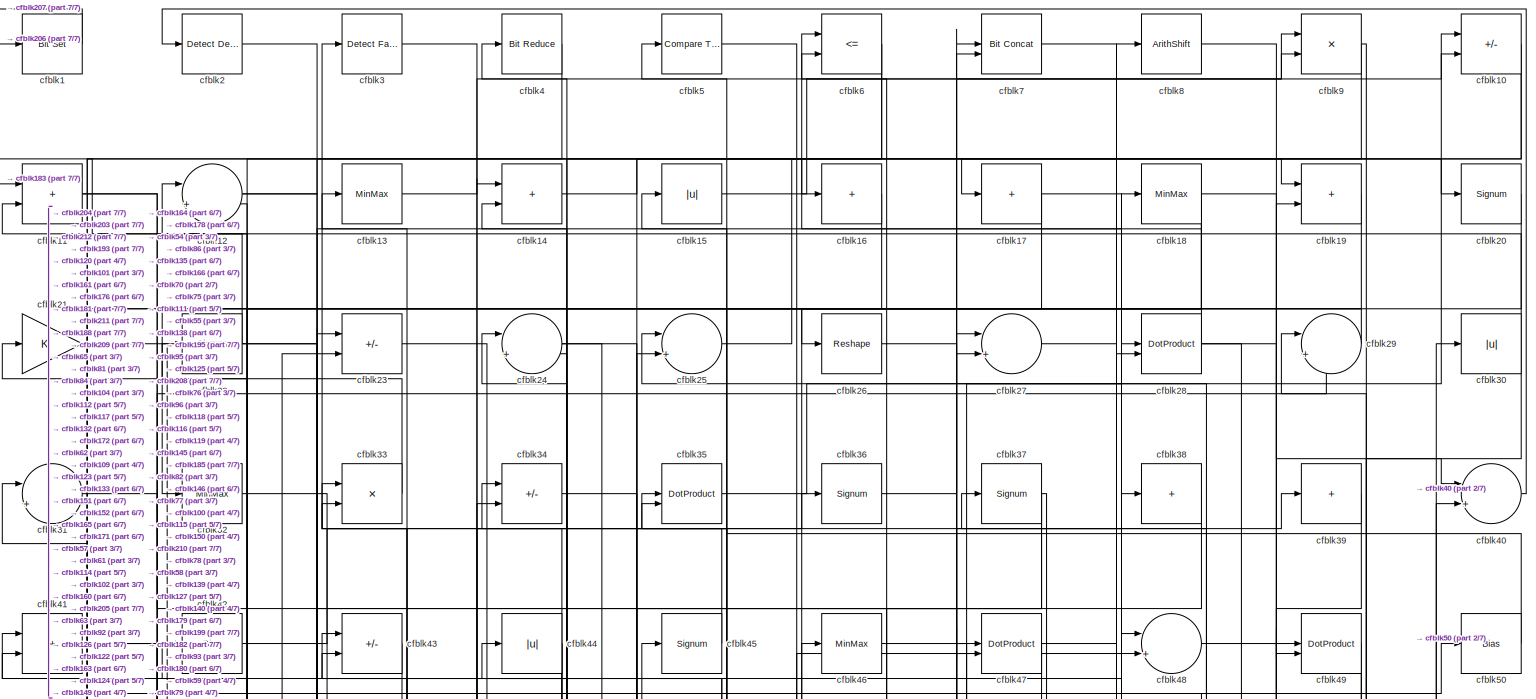
[diagram: root canvas - part 1/7, full width, top band]
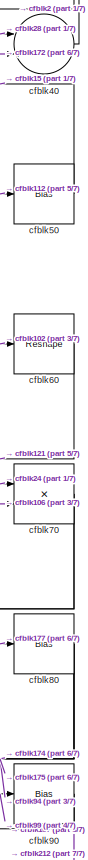
[diagram: root canvas - part 2/7, top right region]
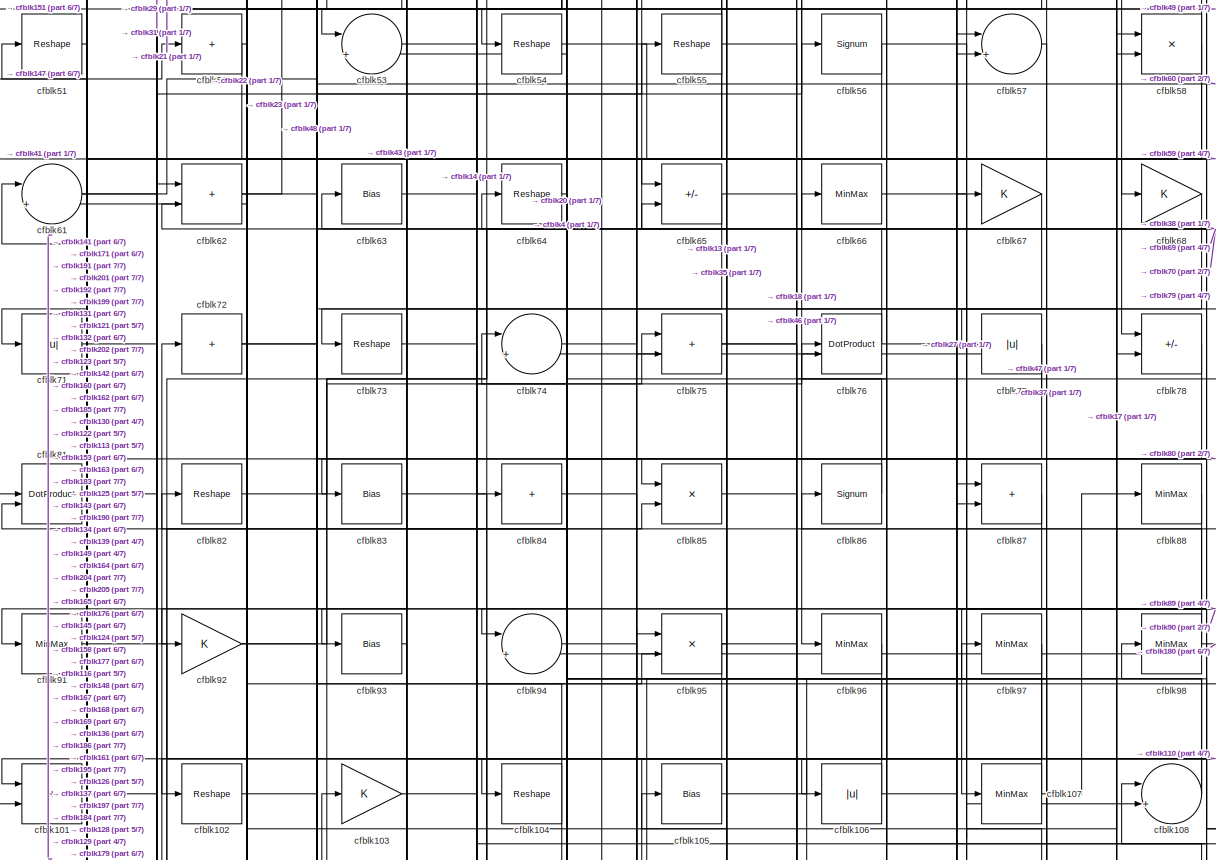
[diagram: root canvas - part 3/7, full width, middle band]
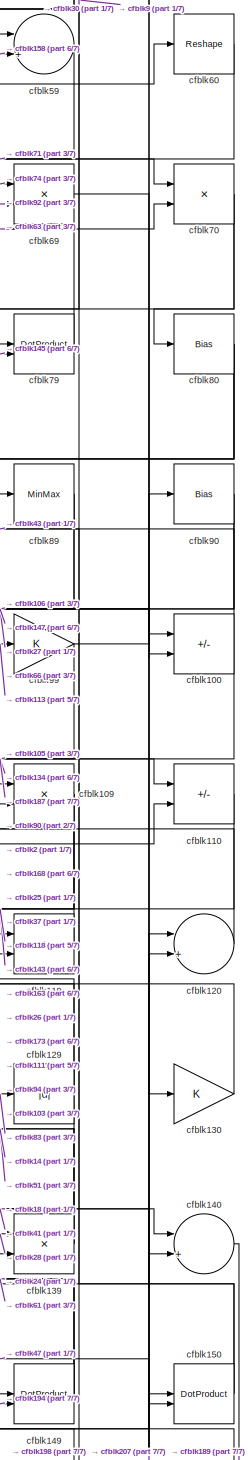
[diagram: root canvas - part 4/7, middle right region]
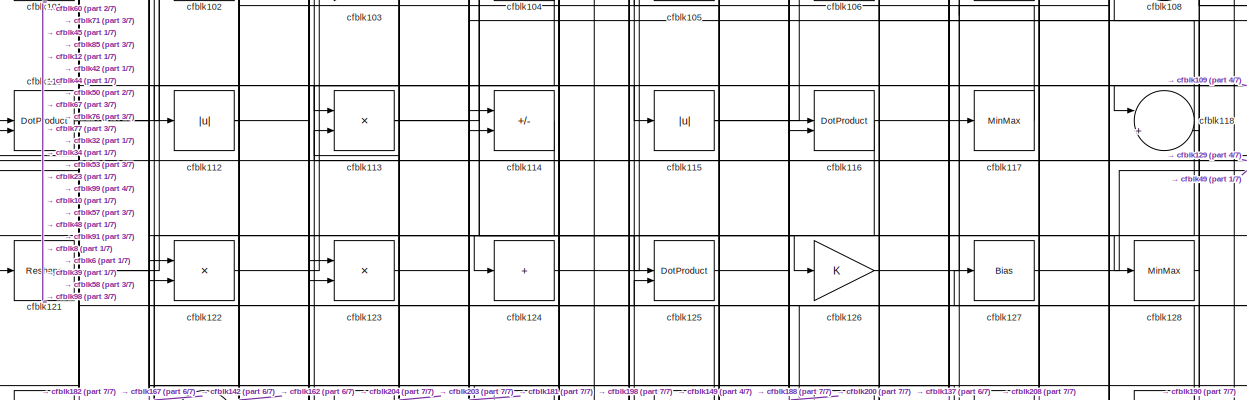
[diagram: root canvas - part 5/7, full width, middle band]
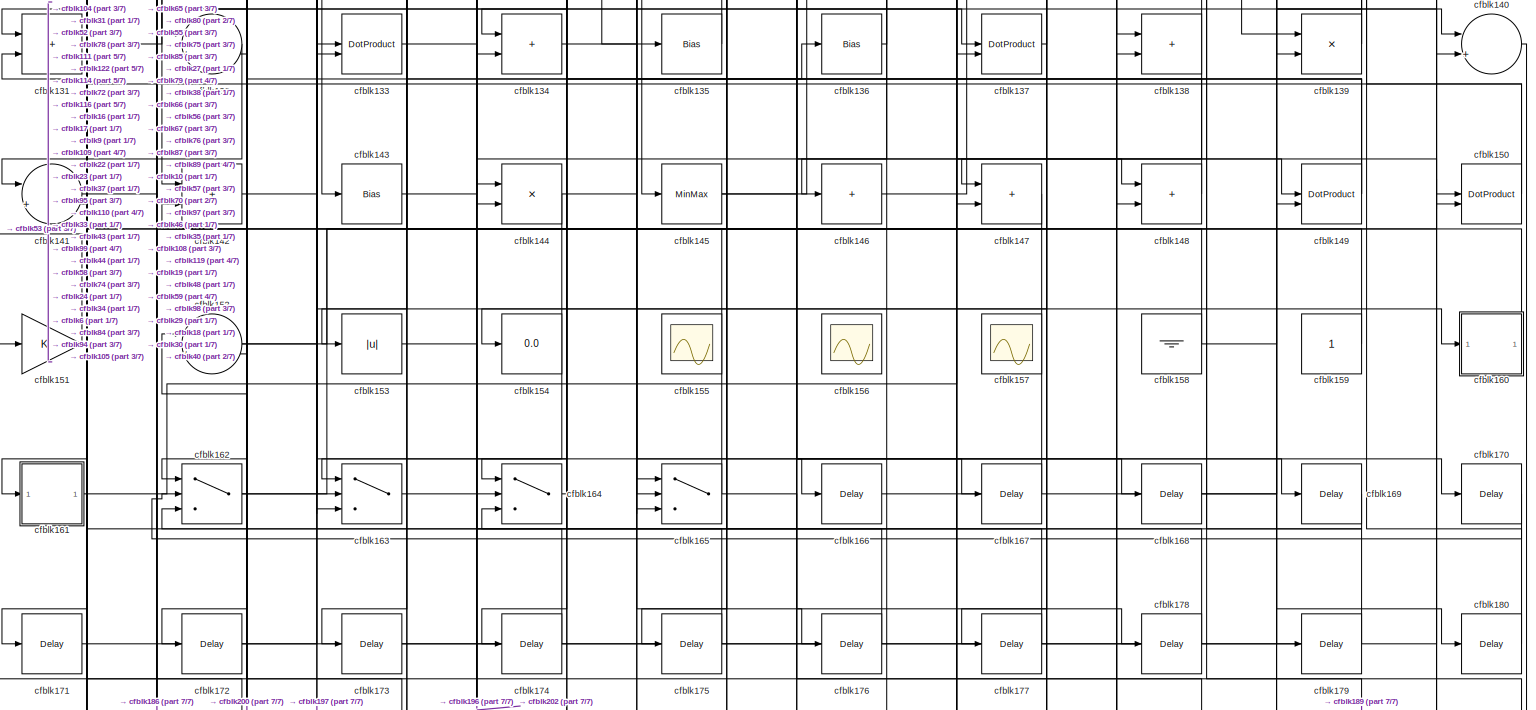
[diagram: root canvas - part 6/7, full width, bottom band]
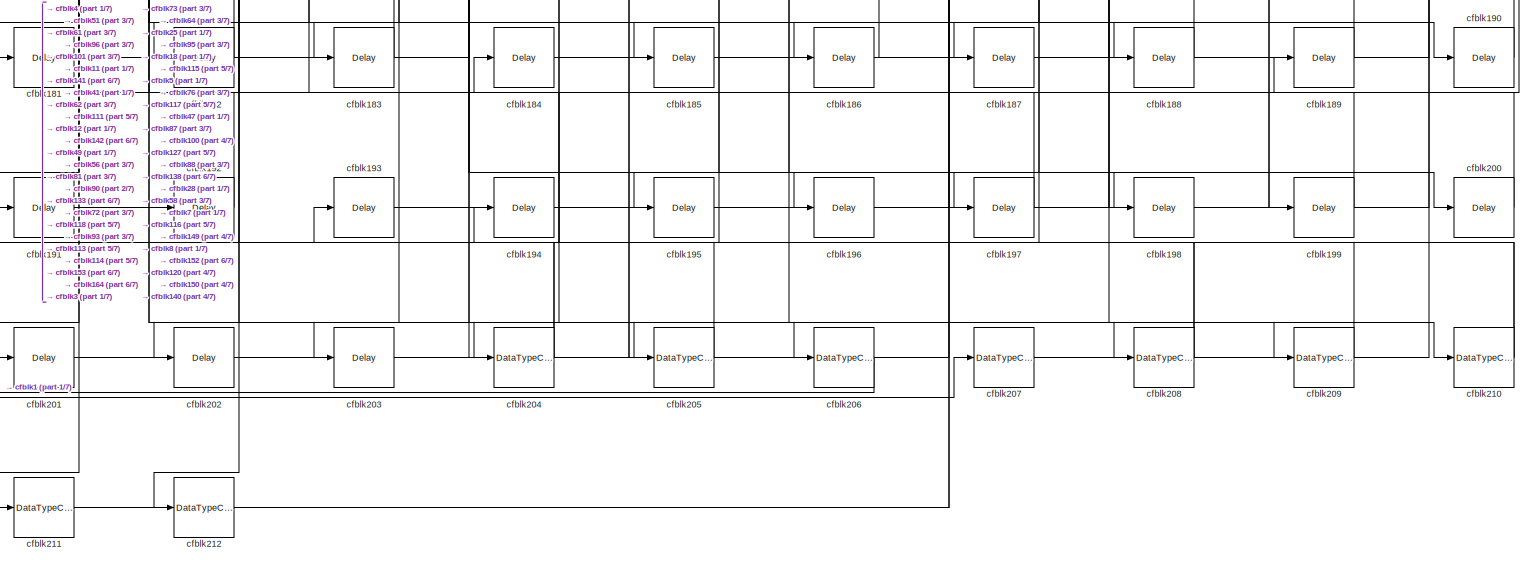
[diagram: root canvas - part 7/7, full width, bottom band]
MODEL slx_3e4910b39689
KIND model
CONFIG AbsTol = auto
CONFIG EnableMultiTasking = off
CONFIG FixedStep = auto
CONFIG MaxStep = auto
CONFIG MinStep = auto
CONFIG RelTol = 1e-3
CONFIG SampleTimeConstraint = Unconstrained
CONFIG SolverName = VariableStepAuto
CONFIG StartTime = 0.0
CONFIG StopTime = 10.0
BLOCK [Reference] cfblk1  REF=simulink/Logic and Bit
Operations/Bit Set
  LibrarySourceBlock = hdlsllib/Logic and Bit\nOperations/Bit Set
  SourceBlock = simulink/Logic and Bit\nOperations/Bit Set
  SourceType = Bit Set
BLOCK [Sum] cfblk10
  IconShape = rectangular
  Inputs = +-
BLOCK [Sum] cfblk100
  IconShape = rectangular
  Inputs = +-
BLOCK [Sum] cfblk101
  IconShape = rectangular
BLOCK [Reshape] cfblk102
BLOCK [Gain] cfblk103
BLOCK [Reshape] cfblk104
BLOCK [Bias] cfblk105
  Bias = 0.0
  SaturateOnIntegerOverflow = off
BLOCK [Abs] cfblk106
  SaturateOnIntegerOverflow = off
BLOCK [MinMax] cfblk107
BLOCK [Sum] cfblk108
  Inputs = |++
BLOCK [Product] cfblk109
  Inputs = */
  RndMeth = Zero
  SaturateOnIntegerOverflow = on
BLOCK [Sum] cfblk11
  IconShape = rectangular
BLOCK [Sum] cfblk110
  IconShape = rectangular
  Inputs = +-
BLOCK [DotProduct] cfblk111
  OutDataTypeStr = Inherit: Inherit via internal rule
BLOCK [Abs] cfblk112
  SaturateOnIntegerOverflow = off
BLOCK [Product] cfblk113
  Inputs = */
  RndMeth = Zero
  SaturateOnIntegerOverflow = on
BLOCK [Sum] cfblk114
  IconShape = rectangular
  Inputs = +-
BLOCK [Abs] cfblk115
  SaturateOnIntegerOverflow = off
BLOCK [DotProduct] cfblk116
  OutDataTypeStr = Inherit: Inherit via internal rule
BLOCK [MinMax] cfblk117
BLOCK [Sum] cfblk118
  Inputs = |++
BLOCK [Sum] cfblk119
  IconShape = rectangular
BLOCK [Sum] cfblk12
  Inputs = |++
BLOCK [Sum] cfblk120
  Inputs = |++
BLOCK [Reshape] cfblk121
BLOCK [Product] cfblk122
  Inputs = */
  RndMeth = Zero
  SaturateOnIntegerOverflow = on
BLOCK [Product] cfblk123
  Inputs = */
  RndMeth = Zero
  SaturateOnIntegerOverflow = on
BLOCK [Sum] cfblk124
  IconShape = rectangular
  Inputs = +
BLOCK [DotProduct] cfblk125
  OutDataTypeStr = Inherit: Inherit via internal rule
BLOCK [Gain] cfblk126
BLOCK [Bias] cfblk127
  Bias = 0.0
  SaturateOnIntegerOverflow = off
BLOCK [MinMax] cfblk128
BLOCK [Abs] cfblk129
  SaturateOnIntegerOverflow = off
BLOCK [MinMax] cfblk13
BLOCK [Gain] cfblk130
BLOCK [Sum] cfblk131
  IconShape = rectangular
BLOCK [Sum] cfblk132
  Inputs = |++
BLOCK [DotProduct] cfblk133
  OutDataTypeStr = Inherit: Inherit via internal rule
BLOCK [Sum] cfblk134
  IconShape = rectangular
BLOCK [Bias] cfblk135
  Bias = 0.0
  SaturateOnIntegerOverflow = off
BLOCK [Bias] cfblk136
  Bias = 0.0
  SaturateOnIntegerOverflow = off
BLOCK [DotProduct] cfblk137
  OutDataTypeStr = Inherit: Inherit via internal rule
BLOCK [Sum] cfblk138
  IconShape = rectangular
BLOCK [Product] cfblk139
  Inputs = */
  RndMeth = Zero
  SaturateOnIntegerOverflow = on
BLOCK [Sum] cfblk14
  IconShape = rectangular
BLOCK [Sum] cfblk140
  Inputs = |++
BLOCK [Sum] cfblk141
  Inputs = |++
BLOCK [Sum] cfblk142
  IconShape = rectangular
BLOCK [Bias] cfblk143
  Bias = 0.0
  SaturateOnIntegerOverflow = off
BLOCK [Product] cfblk144
  Inputs = */
  RndMeth = Zero
  SaturateOnIntegerOverflow = on
BLOCK [MinMax] cfblk145
BLOCK [Sum] cfblk146
  IconShape = rectangular
  Inputs = +
BLOCK [Sum] cfblk147
  IconShape = rectangular
BLOCK [Sum] cfblk148
  IconShape = rectangular
BLOCK [DotProduct] cfblk149
  OutDataTypeStr = Inherit: Inherit via internal rule
BLOCK [Abs] cfblk15
  SaturateOnIntegerOverflow = off
BLOCK [DotProduct] cfblk150
  OutDataTypeStr = Inherit: Inherit via internal rule
BLOCK [Gain] cfblk151
BLOCK [Sum] cfblk152
  Inputs = |++
BLOCK [Abs] cfblk153
  SaturateOnIntegerOverflow = off
BLOCK [Display] cfblk154
  Decimation = 1
BLOCK [Scope] cfblk155
  Floating = on
  NumInputPorts = 1
  ScopeSpecificationString = Simulink.scopes.TimeScopeBlockCfg('CurrentConfiguration', extmgr.ConfigurationSet(extmgr.Configuration('Core','General UI',true,'FigureColor',[0.156862745098039 0.156862745098039 0.156862745098039]),extmgr.Configuration('Core','Source UI',true),extmgr.Configuration('Sources','WiredSimulink',true,'DataLoggingVariableName','ScopeData1','DataLoggingSaveFormat','StructureWithTime','DataLoggingLimitDat...<+2713ch>  <repeated x3 — deduplicated; at blocks: cfblk155, cfblk156, cfblk157>
BLOCK [Scope] cfblk156
  Floating = on
  NumInputPorts = 1
BLOCK [Scope] cfblk157
  Floating = on
  NumInputPorts = 1
BLOCK [Ground] cfblk158
BLOCK [Constant] cfblk159
  SampleTime = -1
BLOCK [Sum] cfblk16
  IconShape = rectangular
  Inputs = +
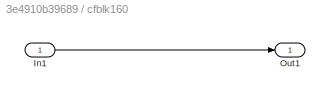
BLOCK [SubSystem] cfblk160
  LibrarySourceBlock = hdlsllib/Ports &\nSubsystems/Subsystem
BLOCK [Inport] cfblk160/In1
BLOCK [Outport] cfblk160/Out1
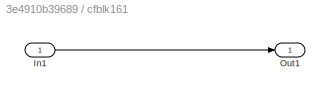
BLOCK [SubSystem] cfblk161
  LibrarySourceBlock = hdlsllib/Ports &\nSubsystems/Subsystem
BLOCK [Inport] cfblk161/In1
BLOCK [Outport] cfblk161/Out1
BLOCK [Switch] cfblk162
  InputSameDT = off
  SaturateOnIntegerOverflow = off
BLOCK [Switch] cfblk163
  InputSameDT = off
  SaturateOnIntegerOverflow = off
BLOCK [Switch] cfblk164
  InputSameDT = off
  SaturateOnIntegerOverflow = off
BLOCK [Switch] cfblk165
  InputSameDT = off
  SaturateOnIntegerOverflow = off
BLOCK [Delay] cfblk166
  InputPortMap = u0
  SampleTime = 1
BLOCK [Delay] cfblk167
  InputPortMap = u0
  SampleTime = 1
BLOCK [Delay] cfblk168
  InputPortMap = u0
  SampleTime = 1
BLOCK [Delay] cfblk169
  InputPortMap = u0
  SampleTime = 1
BLOCK [Sum] cfblk17
  IconShape = rectangular
  Inputs = +
BLOCK [Delay] cfblk170
  InputPortMap = u0
  SampleTime = 1
BLOCK [Delay] cfblk171
  InputPortMap = u0
  SampleTime = 1
BLOCK [Delay] cfblk172
  InputPortMap = u0
  SampleTime = 1
BLOCK [Delay] cfblk173
  InputPortMap = u0
  SampleTime = 1
BLOCK [Delay] cfblk174
  InputPortMap = u0
  SampleTime = 1
BLOCK [Delay] cfblk175
  InputPortMap = u0
  SampleTime = 1
BLOCK [Delay] cfblk176
  InputPortMap = u0
  SampleTime = 1
BLOCK [Delay] cfblk177
  InputPortMap = u0
  SampleTime = 1
BLOCK [Delay] cfblk178
  InputPortMap = u0
  SampleTime = 1
BLOCK [Delay] cfblk179
  InputPortMap = u0
  SampleTime = 1
BLOCK [MinMax] cfblk18
BLOCK [Delay] cfblk180
  InputPortMap = u0
  SampleTime = 1
BLOCK [Delay] cfblk181
  InputPortMap = u0
  SampleTime = 1
BLOCK [Delay] cfblk182
  InputPortMap = u0
  SampleTime = 1
BLOCK [Delay] cfblk183
  InputPortMap = u0
  SampleTime = 1
BLOCK [Delay] cfblk184
  InputPortMap = u0
  SampleTime = 1
BLOCK [Delay] cfblk185
  InputPortMap = u0
  SampleTime = 1
BLOCK [Delay] cfblk186
  InputPortMap = u0
  SampleTime = 1
BLOCK [Delay] cfblk187
  InputPortMap = u0
  SampleTime = 1
BLOCK [Delay] cfblk188
  InputPortMap = u0
  SampleTime = 1
BLOCK [Delay] cfblk189
  InputPortMap = u0
  SampleTime = 1
BLOCK [Sum] cfblk19
  IconShape = rectangular
BLOCK [Delay] cfblk190
  InputPortMap = u0
  SampleTime = 1
BLOCK [Delay] cfblk191
  InputPortMap = u0
  SampleTime = 1
BLOCK [Delay] cfblk192
  InputPortMap = u0
  SampleTime = 1
BLOCK [Delay] cfblk193
  InputPortMap = u0
  SampleTime = 1
BLOCK [Delay] cfblk194
  InputPortMap = u0
  SampleTime = 1
BLOCK [Delay] cfblk195
  InputPortMap = u0
  SampleTime = 1
BLOCK [Delay] cfblk196
  InputPortMap = u0
  SampleTime = 1
BLOCK [Delay] cfblk197
  InputPortMap = u0
  SampleTime = 1
BLOCK [Delay] cfblk198
  InputPortMap = u0
  SampleTime = 1
BLOCK [Delay] cfblk199
  InputPortMap = u0
  SampleTime = 1
BLOCK [Reference] cfblk2  REF=simulink/Logic and Bit
Operations/Detect
Decrease
  LibrarySourceBlock = hdlsllib/Logic and Bit\nOperations/Detect\nDecrease
  SourceBlock = simulink/Logic and Bit\nOperations/Detect\nDecrease
  SourceType = Detect Decrease
BLOCK [Signum] cfblk20
BLOCK [Delay] cfblk200
  InputPortMap = u0
  SampleTime = 1
BLOCK [Delay] cfblk201
  InputPortMap = u0
  SampleTime = 1
BLOCK [Delay] cfblk202
  InputPortMap = u0
  SampleTime = 1
BLOCK [Delay] cfblk203
  InputPortMap = u0
  SampleTime = 1
BLOCK [DataTypeConversion] cfblk204
  RndMeth = Floor
  SaturateOnIntegerOverflow = off
BLOCK [DataTypeConversion] cfblk205
  OutDataTypeStr = uint8
  RndMeth = Floor
  SaturateOnIntegerOverflow = off
BLOCK [DataTypeConversion] cfblk206
  OutDataTypeStr = boolean
  RndMeth = Floor
  SaturateOnIntegerOverflow = off
BLOCK [DataTypeConversion] cfblk207
  OutDataTypeStr = uint8
  RndMeth = Floor
  SaturateOnIntegerOverflow = off
BLOCK [DataTypeConversion] cfblk208
  RndMeth = Floor
  SaturateOnIntegerOverflow = off
BLOCK [DataTypeConversion] cfblk209
  OutDataTypeStr = uint8
  RndMeth = Floor
  SaturateOnIntegerOverflow = off
BLOCK [Gain] cfblk21
BLOCK [DataTypeConversion] cfblk210
  RndMeth = Floor
  SaturateOnIntegerOverflow = off
BLOCK [DataTypeConversion] cfblk211
  OutDataTypeStr = uint8
  RndMeth = Floor
  SaturateOnIntegerOverflow = off
BLOCK [DataTypeConversion] cfblk212
  OutDataTypeStr = uint8
  RndMeth = Floor
  SaturateOnIntegerOverflow = off
BLOCK [Signum] cfblk22
BLOCK [Sum] cfblk23
  IconShape = rectangular
  Inputs = +-
BLOCK [Sum] cfblk24
  Inputs = |++
BLOCK [Sum] cfblk25
  Inputs = |++
BLOCK [Reshape] cfblk26
BLOCK [Sum] cfblk27
  Inputs = |++
BLOCK [DotProduct] cfblk28
  OutDataTypeStr = Inherit: Inherit via internal rule
BLOCK [Sum] cfblk29
  Inputs = |++
BLOCK [Reference] cfblk3  REF=hdlsllib/Logic and Bit
Operations/Detect Fall
Nonpositive
  SourceBlock = hdlsllib/Logic and Bit\nOperations/Detect Fall\nNonpositive
  SourceType = Detect Fall Nonpositive
BLOCK [Abs] cfblk30
  SaturateOnIntegerOverflow = off
BLOCK [Sum] cfblk31
  Inputs = |++
BLOCK [MinMax] cfblk32
BLOCK [Product] cfblk33
  Inputs = */
  RndMeth = Zero
  SaturateOnIntegerOverflow = on
BLOCK [Sum] cfblk34
  IconShape = rectangular
  Inputs = +-
BLOCK [DotProduct] cfblk35
  OutDataTypeStr = Inherit: Inherit via internal rule
BLOCK [Signum] cfblk36
BLOCK [Signum] cfblk37
BLOCK [Sum] cfblk38
  IconShape = rectangular
  Inputs = +
BLOCK [Sum] cfblk39
  IconShape = rectangular
  Inputs = +
BLOCK [Reference] cfblk4  REF=hdlsllib/Logic and Bit
Operations/Bit Reduce
  SourceBlock = hdlsllib/Logic and Bit\nOperations/Bit Reduce
  SourceType = Bit Reduce
BLOCK [Sum] cfblk40
  Inputs = |++
BLOCK [Sum] cfblk41
  IconShape = rectangular
BLOCK [Bias] cfblk42
  Bias = 0.0
  SaturateOnIntegerOverflow = off
BLOCK [Sum] cfblk43
  IconShape = rectangular
  Inputs = +-
BLOCK [Abs] cfblk44
  SaturateOnIntegerOverflow = off
BLOCK [Signum] cfblk45
BLOCK [MinMax] cfblk46
BLOCK [DotProduct] cfblk47
  OutDataTypeStr = Inherit: Inherit via internal rule
BLOCK [Sum] cfblk48
  Inputs = |++
BLOCK [DotProduct] cfblk49
  OutDataTypeStr = Inherit: Inherit via internal rule
BLOCK [Reference] cfblk5  REF=hdlsllib/Logic and Bit
Operations/Compare
To Zero
  SourceBlock = hdlsllib/Logic and Bit\nOperations/Compare\nTo Zero
  SourceType = Compare To Zero
BLOCK [Bias] cfblk50
  Bias = 0.0
  SaturateOnIntegerOverflow = off
BLOCK [Reshape] cfblk51
BLOCK [Sum] cfblk52
  IconShape = rectangular
  Inputs = +
BLOCK [Sum] cfblk53
  Inputs = |++
BLOCK [Reshape] cfblk54
BLOCK [Reshape] cfblk55
BLOCK [Signum] cfblk56
BLOCK [Sum] cfblk57
  Inputs = |++
BLOCK [Product] cfblk58
  Inputs = */
  RndMeth = Zero
  SaturateOnIntegerOverflow = on
BLOCK [Sum] cfblk59
  Inputs = |++
BLOCK [RelationalOperator] cfblk6
  InputSameDT = off
  Operator = <=
  OutDataTypeStr = boolean
BLOCK [Reshape] cfblk60
BLOCK [Sum] cfblk61
  Inputs = |++
BLOCK [Sum] cfblk62
  IconShape = rectangular
BLOCK [Bias] cfblk63
  Bias = 0.0
  SaturateOnIntegerOverflow = off
BLOCK [Reshape] cfblk64
BLOCK [Sum] cfblk65
  IconShape = rectangular
  Inputs = +-
BLOCK [MinMax] cfblk66
BLOCK [Gain] cfblk67
BLOCK [Gain] cfblk68
BLOCK [Product] cfblk69
  Inputs = */
  RndMeth = Zero
  SaturateOnIntegerOverflow = on
BLOCK [Reference] cfblk7  REF=hdlsllib/Logic and Bit
Operations/Bit Concat
  SourceBlock = hdlsllib/Logic and Bit\nOperations/Bit Concat
  SourceType = Bit Concat
BLOCK [Product] cfblk70
  Inputs = */
  RndMeth = Zero
  SaturateOnIntegerOverflow = on
BLOCK [Abs] cfblk71
  SaturateOnIntegerOverflow = off
BLOCK [Sum] cfblk72
  IconShape = rectangular
  Inputs = +
BLOCK [Reshape] cfblk73
BLOCK [Sum] cfblk74
  Inputs = |++
BLOCK [Sum] cfblk75
  IconShape = rectangular
BLOCK [DotProduct] cfblk76
  OutDataTypeStr = Inherit: Inherit via internal rule
BLOCK [Abs] cfblk77
  SaturateOnIntegerOverflow = off
BLOCK [Sum] cfblk78
  IconShape = rectangular
  Inputs = +-
BLOCK [DotProduct] cfblk79
  OutDataTypeStr = Inherit: Inherit via internal rule
BLOCK [ArithShift] cfblk8
  BitShiftNumber = 8
  InputPortMap = u0
BLOCK [Bias] cfblk80
  Bias = 0.0
  SaturateOnIntegerOverflow = off
BLOCK [DotProduct] cfblk81
  OutDataTypeStr = Inherit: Inherit via internal rule
BLOCK [Reshape] cfblk82
BLOCK [Bias] cfblk83
  Bias = 0.0
  SaturateOnIntegerOverflow = off
BLOCK [Sum] cfblk84
  IconShape = rectangular
  Inputs = +
BLOCK [Product] cfblk85
  Inputs = */
  RndMeth = Zero
  SaturateOnIntegerOverflow = on
BLOCK [Signum] cfblk86
BLOCK [Sum] cfblk87
  IconShape = rectangular
BLOCK [MinMax] cfblk88
BLOCK [MinMax] cfblk89
BLOCK [Product] cfblk9
  Inputs = */
  RndMeth = Zero
  SaturateOnIntegerOverflow = on
BLOCK [Bias] cfblk90
  Bias = 0.0
  SaturateOnIntegerOverflow = off
BLOCK [MinMax] cfblk91
BLOCK [Gain] cfblk92
BLOCK [Bias] cfblk93
  Bias = 0.0
  SaturateOnIntegerOverflow = off
BLOCK [Sum] cfblk94
  Inputs = |++
BLOCK [Product] cfblk95
  Inputs = */
  RndMeth = Zero
  SaturateOnIntegerOverflow = on
BLOCK [MinMax] cfblk96
BLOCK [MinMax] cfblk97
BLOCK [MinMax] cfblk98
BLOCK [Gain] cfblk99
NET cfblk100:1 -> cfblk187:1, cfblk43:1
LINE cfblk101:1 -> cfblk192:1
LINE cfblk102:1 -> cfblk60:1
LINE cfblk103:1 -> cfblk149:1
NET cfblk104:1 -> cfblk131:1, cfblk22:1
LINE cfblk105:1 -> cfblk110:1
NET cfblk106:1 -> cfblk70:2, cfblk82:1
NET cfblk107:1 -> cfblk53:2, cfblk88:1
NET cfblk108:1 -> cfblk62:2, cfblk81:2
NET cfblk109:1 -> cfblk118:1, cfblk163:2
NET cfblk10:1 -> cfblk124:1, cfblk17:1
LINE cfblk110:1 -> cfblk143:1
NET cfblk111:1 -> cfblk115:1, cfblk137:2, cfblk45:1
NET cfblk112:1 -> cfblk42:1, cfblk50:1
NET cfblk113:1 -> cfblk198:1, cfblk99:1
LINE cfblk114:1 -> cfblk142:1
NET cfblk115:1 -> cfblk200:1, cfblk8:1
NET cfblk116:1 -> cfblk162:1, cfblk39:1
LINE cfblk117:1 -> cfblk12:1
NET cfblk118:1 -> cfblk203:1, cfblk6:1
LINE cfblk119:1 -> cfblk37:1
NET cfblk11:1 -> cfblk209:1, cfblk47:2
LINE cfblk120:1 -> cfblk25:1
NET cfblk121:1 -> cfblk125:2, cfblk85:2
LINE cfblk122:1 -> cfblk76:1
LINE cfblk123:1 -> cfblk34:2
LINE cfblk124:1 -> cfblk57:1
LINE cfblk125:1 -> cfblk48:2
LINE cfblk126:1 -> cfblk58:1
LINE cfblk127:1 -> cfblk49:1
LINE cfblk128:1 -> cfblk98:1
NET cfblk129:1 -> cfblk111:1, cfblk139:2, cfblk94:2
NET cfblk12:1 -> cfblk123:1, cfblk16:1
LINE cfblk130:1 -> cfblk103:1
LINE cfblk131:1 -> cfblk72:1
LINE cfblk132:1 -> cfblk141:1
LINE cfblk133:1 -> cfblk144:2
LINE cfblk134:1 -> cfblk170:1
LINE cfblk135:1 -> cfblk33:2
LINE cfblk136:1 -> cfblk66:1
LINE cfblk137:1 -> cfblk97:1
NET cfblk138:1 -> cfblk154:1, cfblk35:2
NET cfblk139:1 -> cfblk14:2, cfblk51:1
LINE cfblk13:1 -> cfblk9:1
LINE cfblk140:1 -> cfblk189:1
LINE cfblk141:1 -> cfblk186:1
LINE cfblk142:1 -> cfblk95:2
LINE cfblk143:1 -> cfblk75:1
NET cfblk144:1 -> cfblk136:1, cfblk173:1
NET cfblk145:1 -> cfblk27:1, cfblk79:2
LINE cfblk146:1 -> cfblk10:1
LINE cfblk147:1 -> cfblk52:1
LINE cfblk148:1 -> cfblk74:1
NET cfblk149:1 -> cfblk113:2, cfblk24:1, cfblk61:2
LINE cfblk14:1 -> cfblk20:1
NET cfblk150:1 -> cfblk41:1, cfblk89:1
LINE cfblk151:1 -> cfblk53:1
NET cfblk152:1 -> cfblk18:1, cfblk30:1
LINE cfblk153:1 -> cfblk196:1
NET cfblk158:1 -> cfblk105:1, cfblk59:2
LINE cfblk159:1 -> cfblk131:2
LINE cfblk15:1 -> cfblk10:2
LINE cfblk160/In1:1 -> cfblk160/Out1:1
LINE cfblk160:1 -> cfblk33:1
LINE cfblk161/In1:1 -> cfblk161/Out1:1
LINE cfblk161:1 -> cfblk87:1
NET cfblk162:1 -> cfblk56:1, cfblk67:1
LINE cfblk163:1 -> cfblk110:2
LINE cfblk164:1 -> cfblk44:1
NET cfblk165:1 -> cfblk178:1, cfblk43:2
LINE cfblk166:1 -> cfblk19:2
LINE cfblk167:1 -> cfblk122:1
LINE cfblk168:1 -> cfblk109:2
LINE cfblk169:1 -> cfblk162:3
LINE cfblk16:1 -> cfblk172:1
LINE cfblk170:1 -> cfblk162:2
LINE cfblk171:1 -> cfblk23:1
LINE cfblk172:1 -> cfblk40:2
LINE cfblk173:1 -> cfblk119:2
LINE cfblk174:1 -> cfblk144:1
LINE cfblk175:1 -> cfblk164:3
LINE cfblk176:1 -> cfblk31:1
LINE cfblk177:1 -> cfblk65:2
LINE cfblk178:1 -> cfblk24:2
LINE cfblk179:1 -> cfblk108:1
NET cfblk17:1 -> cfblk132:2, cfblk78:1
LINE cfblk180:1 -> cfblk29:1
LINE cfblk181:1 -> cfblk114:2
LINE cfblk182:1 -> cfblk111:2
LINE cfblk183:1 -> cfblk11:1
LINE cfblk184:1 -> cfblk58:2
LINE cfblk185:1 -> cfblk47:1
LINE cfblk186:1 -> cfblk76:2
LINE cfblk187:1 -> cfblk150:1
LINE cfblk188:1 -> cfblk116:1
LINE cfblk189:1 -> cfblk152:1
NET cfblk18:1 -> cfblk101:1, cfblk140:1, cfblk195:1, cfblk211:1, cfblk96:1
LINE cfblk190:1 -> cfblk118:2
LINE cfblk191:1 -> cfblk206:1
LINE cfblk192:1 -> cfblk61:1
LINE cfblk193:1 -> cfblk28:2
LINE cfblk194:1 -> cfblk149:2
LINE cfblk195:1 -> cfblk87:2
LINE cfblk196:1 -> cfblk138:2
LINE cfblk197:1 -> cfblk133:1
LINE cfblk198:1 -> cfblk120:2
LINE cfblk199:1 -> cfblk62:1
LINE cfblk19:1 -> cfblk32:1
LINE cfblk1:1 -> cfblk207:1
LINE cfblk200:1 -> cfblk142:2
LINE cfblk201:1 -> cfblk95:1
LINE cfblk202:1 -> cfblk164:2
LINE cfblk203:1 -> cfblk25:2
NET cfblk204:1 -> cfblk117:1, cfblk12:2, cfblk81:1
LINE cfblk205:1 -> cfblk64:1
LINE cfblk206:1 -> cfblk1:1
LINE cfblk207:1 -> cfblk120:1
NET cfblk208:1 -> cfblk127:1, cfblk184:1
LINE cfblk209:1 -> cfblk5:1
LINE cfblk20:1 -> cfblk54:1
NET cfblk210:1 -> cfblk193:1, cfblk194:1
LINE cfblk211:1 -> cfblk7:1
LINE cfblk212:1 -> cfblk7:2
LINE cfblk21:1 -> cfblk84:1
NET cfblk22:1 -> cfblk151:1, cfblk165:3, cfblk57:2
LINE cfblk23:1 -> cfblk126:1
NET cfblk24:1 -> cfblk135:1, cfblk70:1
LINE cfblk25:1 -> cfblk19:1
LINE cfblk26:1 -> cfblk119:1
LINE cfblk27:1 -> cfblk100:2
NET cfblk28:1 -> cfblk139:1, cfblk40:1, cfblk6:2
LINE cfblk29:1 -> cfblk26:1
LINE cfblk2:1 -> cfblk109:1
NET cfblk30:1 -> cfblk11:2, cfblk79:1
LINE cfblk31:1 -> cfblk65:1
LINE cfblk32:1 -> cfblk114:1
LINE cfblk33:1 -> cfblk21:1
LINE cfblk34:1 -> cfblk166:1
LINE cfblk35:1 -> cfblk28:1
LINE cfblk36:1 -> cfblk9:2
NET cfblk37:1 -> cfblk133:2, cfblk75:2, cfblk77:1
LINE cfblk38:1 -> cfblk146:1
LINE cfblk39:1 -> cfblk49:2
LINE cfblk3:1 -> cfblk205:1
LINE cfblk40:1 -> cfblk2:1
NET cfblk41:1 -> cfblk140:2, cfblk188:1
LINE cfblk42:1 -> cfblk36:1
LINE cfblk43:1 -> cfblk102:1
NET cfblk44:1 -> cfblk112:1, cfblk122:2, cfblk163:3, cfblk34:1
LINE cfblk45:1 -> cfblk3:1
LINE cfblk46:1 -> cfblk138:1
NET cfblk47:1 -> cfblk104:1, cfblk150:2
LINE cfblk48:1 -> cfblk179:1
NET cfblk49:1 -> cfblk182:1, cfblk93:1
LINE cfblk4:1 -> cfblk181:1
LINE cfblk50:1 -> cfblk15:1
LINE cfblk51:1 -> cfblk201:1
NET cfblk52:1 -> cfblk132:1, cfblk141:2
LINE cfblk53:1 -> cfblk125:1
LINE cfblk54:1 -> cfblk68:1
NET cfblk55:1 -> cfblk101:2, cfblk137:1, cfblk13:1, cfblk41:2, cfblk92:1
NET cfblk56:1 -> cfblk108:2, cfblk202:1
LINE cfblk57:1 -> cfblk147:1
NET cfblk58:1 -> cfblk134:1, cfblk163:1, cfblk31:2
LINE cfblk59:1 -> cfblk71:1
LINE cfblk5:1 -> cfblk208:1
LINE cfblk60:1 -> cfblk121:1
NET cfblk61:1 -> cfblk48:1, cfblk55:1
NET cfblk62:1 -> cfblk23:2, cfblk85:1
LINE cfblk63:1 -> cfblk14:1
LINE cfblk64:1 -> cfblk204:1
NET cfblk65:1 -> cfblk78:2, cfblk83:1
LINE cfblk66:1 -> cfblk130:1
LINE cfblk67:1 -> cfblk123:2
LINE cfblk68:1 -> cfblk73:1
LINE cfblk69:1 -> cfblk100:1
NET cfblk6:1 -> cfblk161:1, cfblk165:2
NET cfblk70:1 -> cfblk177:1, cfblk80:1
LINE cfblk71:1 -> cfblk128:1
NET cfblk72:1 -> cfblk160:1, cfblk185:1
LINE cfblk73:1 -> cfblk190:1
LINE cfblk74:1 -> cfblk69:1
NET cfblk75:1 -> cfblk168:1, cfblk169:1
NET cfblk76:1 -> cfblk148:2, cfblk46:1
NET cfblk77:1 -> cfblk113:1, cfblk74:2
LINE cfblk78:1 -> cfblk171:1
LINE cfblk79:1 -> cfblk63:1
LINE cfblk7:1 -> cfblk210:1
NET cfblk80:1 -> cfblk174:1, cfblk175:1, cfblk94:1
LINE cfblk81:1 -> cfblk29:2
LINE cfblk82:1 -> cfblk27:2
LINE cfblk83:1 -> cfblk129:1
LINE cfblk84:1 -> cfblk165:1
LINE cfblk85:1 -> cfblk167:1
LINE cfblk86:1 -> cfblk4:1
LINE cfblk87:1 -> cfblk91:1
LINE cfblk88:1 -> cfblk197:1
NET cfblk89:1 -> cfblk106:1, cfblk147:2
LINE cfblk8:1 -> cfblk199:1
NET cfblk90:1 -> cfblk107:1, cfblk212:1
LINE cfblk91:1 -> cfblk116:2
NET cfblk92:1 -> cfblk38:1, cfblk69:2
LINE cfblk93:1 -> cfblk183:1
LINE cfblk94:1 -> cfblk176:1
NET cfblk95:1 -> cfblk148:1, cfblk164:1, cfblk35:1
LINE cfblk96:1 -> cfblk191:1
NET cfblk97:1 -> cfblk145:1, cfblk153:1
NET cfblk98:1 -> cfblk180:1, cfblk86:1
NET cfblk99:1 -> cfblk134:2, cfblk90:1
NET cfblk9:1 -> cfblk152:2, cfblk59:1
note: NET lines group one-source signal fan-out (src -> all destinations, sorted); 1:1 wires keep LINE
